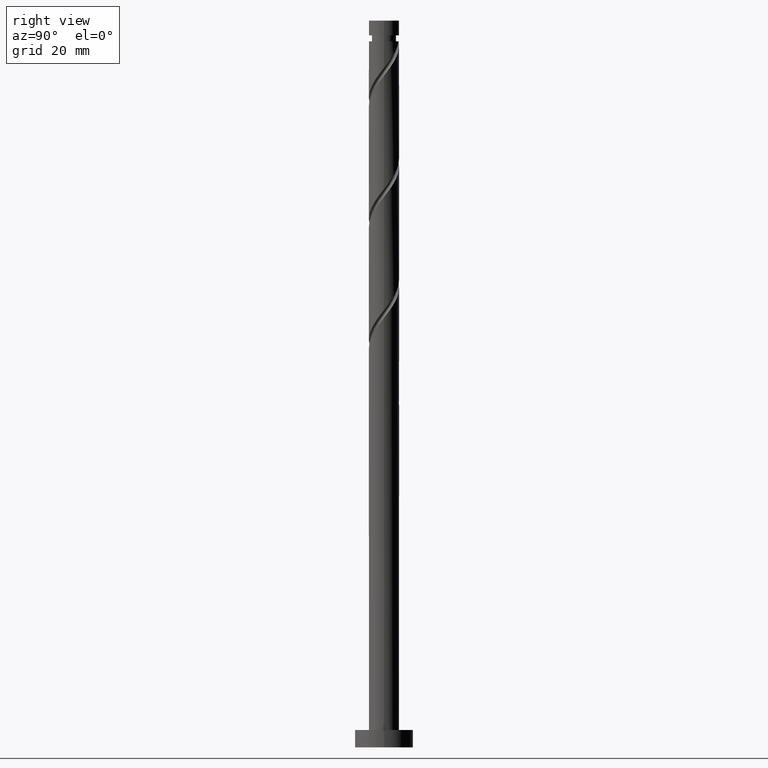
[diagram: clean part render]
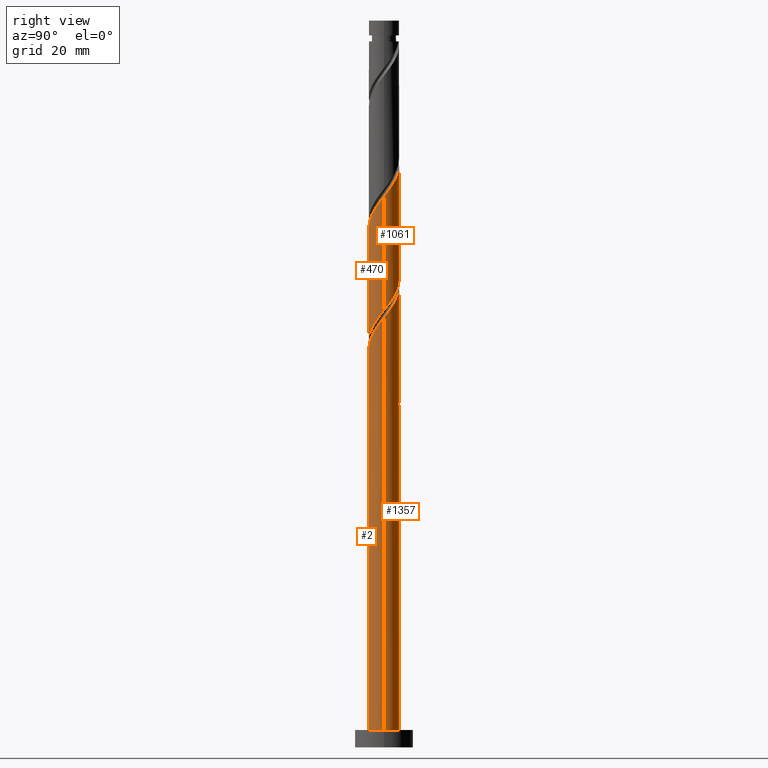
[diagram: same view with one multi-face feature highlighted, each face labeled with its STEP entity id]
A machine part, right view. The highlighted faces form ONE feature: a constant-radius fillet chain: 4 tangent blend faces with common blend radius 2.6 mm. The faces share edges in the B-rep.
Their STEP definitions:
[1] entity #1061 (Cylinder):
#67 = CARTESIAN_POINT ( 'NONE',  ( 2.600000000000002309, 0.2613098319674017067, 95.04932159191936591 ) ) ;
#81 = VECTOR ( 'NONE', #650, 1000.000000000000000 ) ;
#110 = CARTESIAN_POINT ( 'NONE',  ( 2.365491551376095902, 1.079096715020629205, 76.62981945798181016 ) ) ;
#117 = CARTESIAN_POINT ( 'NONE',  ( 0.1138299133485242975, 2.629947074745159430, 80.27565279131513876 ) ) ;
#160 = VERTEX_POINT ( 'NONE', #1541 ) ;
#168 = VERTEX_POINT ( 'NONE', #480 ) ;
#176 = CARTESIAN_POINT ( 'NONE',  ( -2.600000000000004086, -1.259420633789277726E-15, 105.1316836831782098 ) ) ;
#204 = CARTESIAN_POINT ( 'NONE',  ( 2.600000000000003642, 2.203986109131236217E-15, 94.71501701651153837 ) ) ;
#229 = CARTESIAN_POINT ( 'NONE',  ( 2.194579422111507583, 1.453753770477750562, 77.15065279131512455 ) ) ;
#286 = CARTESIAN_POINT ( 'NONE',  ( -0.9209570212423621172, 2.466052925254843320, 101.1089861246484674 ) ) ;
#315 = CARTESIAN_POINT ( 'NONE',  ( 1.757259051958640406, 1.916256930661815350, 97.46315279131513876 ) ) ;
#322 = CARTESIAN_POINT ( 'NONE',  ( 2.263408629347184675, 1.279445730227241729, 96.42148612464845314 ) ) ;
#340 = CARTESIAN_POINT ( 'NONE',  ( -1.453753770477751450, 2.194579422111507139, 82.35898612464846735 ) ) ;
#364 = CARTESIAN_POINT ( 'NONE',  ( -1.079096715020629649, 2.365491551376095458, 81.83815279131513876 ) ) ;
#410 = CARTESIAN_POINT ( 'NONE',  ( -2.536403680640686886, 0.7044396595635092906, 104.2339861246484531 ) ) ;
#433 = CARTESIAN_POINT ( 'NONE',  ( 2.466052925254843320, 0.9209570212423617841, 95.90065279131512455 ) ) ;
#449 = CARTESIAN_POINT ( 'NONE',  ( 1.916256930661813573, 1.757259051958635965, 77.67148612464846735 ) ) ;
#465 = EDGE_LOOP ( 'NONE', ( #701, #1482, #1121, #1178 ) ) ;
#474 = CARTESIAN_POINT ( 'NONE',  ( 2.536403680640682889, 0.7044396595635072922, 76.10898612464849577 ) ) ;
#480 = CARTESIAN_POINT ( 'NONE',  ( 2.599999999999999201, 3.598344667969393893E-15, 75.21128856611873914 ) ) ;
#496 = LINE ( 'NONE', #1470, #1269 ) ;
#520 = CARTESIAN_POINT ( 'NONE',  ( -1.916256930661816238, 1.757259051958639740, 102.6714861246484674 ) ) ;
#540 = CARTESIAN_POINT ( 'NONE',  ( -2.600000000000000089, 3.418427434570925027E-15, 85.62795523278539633 ) ) ;
#545 = CARTESIAN_POINT ( 'NONE',  ( 2.600000000000003642, 2.203986109131236217E-15, 94.71501701651153837 ) ) ;
#580 = DIRECTION ( 'NONE',  ( -0.000000000000000000, -0.000000000000000000, -1.000000000000000000 ) ) ;
#650 = DIRECTION ( 'NONE',  ( -0.000000000000000000, -0.000000000000000000, -1.000000000000000000 ) ) ;
#655 = CARTESIAN_POINT ( 'NONE',  ( 2.060764333439526030, 1.637934439212121340, 96.94231945798181016 ) ) ;
#656 =( BOUNDED_CURVE ( )  B_SPLINE_CURVE ( 2, ( #540, #825, #962, #1572, #1454, #1439, #1549, #340, #364, #1420, #700, #117, #1314, #709, #1199, #1542, #449, #229, #110, #474, #839, #953, #1446 ),
 .UNSPECIFIED., .F., .T. ) 
 B_SPLINE_CURVE_WITH_KNOTS ( ( 3, 2, 2, 2, 2, 2, 2, 2, 2, 2, 2, 3 ),
 ( 0.6795322023138552492, 0.6875000000000000000, 0.6999999999999999556, 0.7125000000000000222, 0.7249999999999999778, 0.7375000000000000444, 0.7500000000000000000, 0.7624999999999999556, 0.7750000000000000222, 0.7874999999999999778, 0.8000000000000000444, 0.8045322023138552492 ),
 .UNSPECIFIED. ) 
 CURVE ( )  GEOMETRIC_REPRESENTATION_ITEM ( )  RATIONAL_B_SPLINE_CURVE ( ( 0.9039174447099346255, 0.9019565955404640345, 0.9090909090909123913, 0.8978984914501285663, 0.9090909090909123913, 0.8978984914501285663, 0.9090909090909123913, 0.8978984914501285663, 0.9090909090909123913, 0.8978984914501285663, 0.9090909090909123913, 0.8978984914501285663, 0.9090909090909123913, 0.8978984914501285663, 0.9090909090909123913, 0.8978984914501285663, 0.9090909090909123913, 0.8978984914501285663, 0.9090909090909123913, 0.8978984914501285663, 0.9090909090909123913, 0.9050328050005768121, 0.9039174447099346255 ) ) 
 REPRESENTATION_ITEM ( '' )  );
#666 = VERTEX_POINT ( 'NONE', #1032 ) ;
#698 = EDGE_CURVE ( 'NONE', #1532, #168, #1383, .T. ) ;
#700 = CARTESIAN_POINT ( 'NONE',  ( -0.2953048731074917055, 2.583175377692920271, 80.79648612464845314 ) ) ;
#701 = ORIENTED_EDGE ( 'NONE', *, *, #1312, .F. ) ;
#709 = CARTESIAN_POINT ( 'NONE',  ( 0.9209570212423614510, 2.466052925254839323, 79.23398612464846735 ) ) ;
#747 = DIRECTION ( 'NONE',  ( -0.000000000000000000, -0.000000000000000000, -1.000000000000000000 ) ) ;
#792 = CARTESIAN_POINT ( 'NONE',  ( -2.600000000000003642, 0.1481317173607208937, 104.9421725939709091 ) ) ;
#825 = CARTESIAN_POINT ( 'NONE',  ( -2.599999999999999645, 0.2613098319673969883, 85.29365065737756879 ) ) ;
#839 = CARTESIAN_POINT ( 'NONE',  ( 2.583175377692920716, 0.2953048731074912059, 75.58815279131513876 ) ) ;
#871 =( BOUNDED_CURVE ( )  B_SPLINE_CURVE ( 2, ( #204, #67, #1387, #433, #322, #655, #315, #1377, #1027, #910, #1009, #885, #1531, #286, #1515, #1044, #520, #1404, #1255, #410, #1155, #792, #176 ),
 .UNSPECIFIED., .F., .T. ) 
 B_SPLINE_CURVE_WITH_KNOTS ( ( 3, 2, 2, 2, 2, 2, 2, 2, 2, 2, 2, 3 ),
 ( 0.4295322023138554157, 0.4375000000000000000, 0.4499999999999999556, 0.4625000000000000222, 0.4749999999999999778, 0.4875000000000000444, 0.5000000000000000000, 0.5124999999999999556, 0.5250000000000000222, 0.5374999999999999778, 0.5500000000000000444, 0.5545322023138553602 ),
 .UNSPECIFIED. ) 
 CURVE ( )  GEOMETRIC_REPRESENTATION_ITEM ( )  RATIONAL_B_SPLINE_CURVE ( ( 0.9039174447099419529, 0.9019565955404715840, 0.9090909090909198298, 0.8978984914501358938, 0.9090909090909198298, 0.8978984914501358938, 0.9090909090909198298, 0.8978984914501358938, 0.9090909090909198298, 0.8978984914501358938, 0.9090909090909198298, 0.8978984914501358938, 0.9090909090909198298, 0.8978984914501358938, 0.9090909090909198298, 0.8978984914501358938, 0.9090909090909198298, 0.8978984914501358938, 0.9090909090909198298, 0.8978984914501358938, 0.9090909090909198298, 0.9050328050005841396, 0.9039174447099420640 ) ) 
 REPRESENTATION_ITEM ( '' )  );
#885 = CARTESIAN_POINT ( 'NONE',  ( -0.1138299133485232845, 2.629947074745163871, 100.0673194579818244 ) ) ;
#910 = CARTESIAN_POINT ( 'NONE',  ( 0.7044396595635099567, 2.536403680640686886, 99.02565279131511033 ) ) ;
#939 = CARTESIAN_POINT ( 'NONE',  ( 0.000000000000000000, 0.000000000000000000, 125.0000000000000000 ) ) ;
#953 = CARTESIAN_POINT ( 'NONE',  ( 2.600000000000000089, 0.1481317173607231974, 75.40079965532601136 ) ) ;
#962 = CARTESIAN_POINT ( 'NONE',  ( -2.547999999999999154, 0.5173934672954427771, 84.96315279131515297 ) ) ;
#1009 = CARTESIAN_POINT ( 'NONE',  ( 0.2953048731074934263, 2.583175377692925156, 99.54648612464845314 ) ) ;
#1027 = CARTESIAN_POINT ( 'NONE',  ( 1.079096715020632535, 2.365491551376099011, 98.50481945798181016 ) ) ;
#1032 = CARTESIAN_POINT ( 'NONE',  ( -2.600000000000004086, -1.259420633789277726E-15, 105.1316836831782098 ) ) ;
#1044 = CARTESIAN_POINT ( 'NONE',  ( -1.637934439212121562, 2.060764333439525142, 102.1506527913151388 ) ) ;
#1061 = ADVANCED_FACE ( 'NONE', ( #1064 ), #1553, .T. ) ;
#1064 = FACE_OUTER_BOUND ( 'NONE', #465, .T. ) ;
#1071 = AXIS2_PLACEMENT_3D ( 'NONE', #939, #580, #1072 ) ;
#1072 = DIRECTION ( 'NONE',  ( -1.000000000000000000, 0.000000000000000000, 0.000000000000000000 ) ) ;
#1121 = ORIENTED_EDGE ( 'NONE', *, *, #1391, .F. ) ;
#1155 = CARTESIAN_POINT ( 'NONE',  ( -2.583175377692925156, 0.2953048731074928157, 104.7548194579817959 ) ) ;
#1178 = ORIENTED_EDGE ( 'NONE', *, *, #1192, .F. ) ;
#1192 = EDGE_CURVE ( 'NONE', #666, #160, #496, .T. ) ;
#1199 = CARTESIAN_POINT ( 'NONE',  ( 1.279445730227240841, 2.263408629347179790, 78.71315279131515297 ) ) ;
#1255 = CARTESIAN_POINT ( 'NONE',  ( -2.365491551376099011, 1.079096715020631869, 103.7131527913151103 ) ) ;
#1269 = VECTOR ( 'NONE', #747, 1000.000000000000000 ) ;
#1312 = EDGE_CURVE ( 'NONE', #1532, #666, #871, .T. ) ;
#1314 = CARTESIAN_POINT ( 'NONE',  ( 0.5173934672954433323, 2.547999999999999154, 79.75481945798181016 ) ) ;
#1377 = CARTESIAN_POINT ( 'NONE',  ( 1.453753770477754559, 2.194579422111509359, 97.98398612464848156 ) ) ;
#1383 = LINE ( 'NONE', #1408, #81 ) ;
#1387 = CARTESIAN_POINT ( 'NONE',  ( 2.548000000000004039, 0.5173934672954426661, 95.37981945798179595 ) ) ;
#1391 = EDGE_CURVE ( 'NONE', #160, #168, #656, .T. ) ;
#1404 = CARTESIAN_POINT ( 'NONE',  ( -2.194579422111509803, 1.453753770477754115, 103.1923194579817959 ) ) ;
#1408 = CARTESIAN_POINT ( 'NONE',  ( 2.600000000000000089, 3.184081677783117698E-16, 125.0000000000000000 ) ) ;
#1420 = CARTESIAN_POINT ( 'NONE',  ( -0.7044396595635075142, 2.536403680640682445, 81.31731945798182437 ) ) ;
#1439 = CARTESIAN_POINT ( 'NONE',  ( -2.060764333439521589, 1.637934439212119120, 83.40065279131512455 ) ) ;
#1446 = CARTESIAN_POINT ( 'NONE',  ( 2.599999999999999201, 3.598344667969393893E-15, 75.21128856611873914 ) ) ;
#1454 = CARTESIAN_POINT ( 'NONE',  ( -2.263408629347179790, 1.279445730227240396, 83.92148612464850999 ) ) ;
#1470 = CARTESIAN_POINT ( 'NONE',  ( -2.600000000000000089, 0.000000000000000000, 125.0000000000000000 ) ) ;
#1482 = ORIENTED_EDGE ( 'NONE', *, *, #698, .T. ) ;
#1515 = CARTESIAN_POINT ( 'NONE',  ( -1.279445730227242173, 2.263408629347184231, 101.6298194579818102 ) ) ;
#1531 = CARTESIAN_POINT ( 'NONE',  ( -0.5173934672954423331, 2.548000000000004039, 100.5881527913151245 ) ) ;
#1532 = VERTEX_POINT ( 'NONE', #545 ) ;
#1541 = CARTESIAN_POINT ( 'NONE',  ( -2.599999999999999645, 3.418427434570925027E-15, 85.62795523278539633 ) ) ;
#1542 = CARTESIAN_POINT ( 'NONE',  ( 1.637934439212119342, 2.060764333439521589, 78.19231945798179595 ) ) ;
#1549 = CARTESIAN_POINT ( 'NONE',  ( -1.757259051958636853, 1.916256930661813129, 82.87981945798182437 ) ) ;
#1553 = CYLINDRICAL_SURFACE ( 'NONE', #1071, 2.600000000000000089 ) ;
#1572 = CARTESIAN_POINT ( 'NONE',  ( -2.466052925254840211, 0.9209570212423611180, 84.44231945798181016 ) ) ;
[2] entity #470 (Cylinder):
#7 =( BOUNDED_CURVE ( )  B_SPLINE_CURVE ( 2, ( #193, #917, #445, #115, #209, #336, #680, #1066, #1435, #689, #594, #1303, #1294, #567, #950, #1570, #1444, #99, #471, #1424, #1085, #1049, #1538 ),
 .UNSPECIFIED., .F., .T. ) 
 B_SPLINE_CURVE_WITH_KNOTS ( ( 3, 2, 2, 2, 2, 2, 2, 2, 2, 2, 2, 3 ),
 ( 0.8045322023138552492, 0.8125000000000000000, 0.8249999999999999556, 0.8375000000000000222, 0.8499999999999999778, 0.8625000000000000444, 0.8750000000000000000, 0.8874999999999999556, 0.9000000000000000222, 0.9124999999999999778, 0.9250000000000000444, 0.9295322023138552492 ),
 .UNSPECIFIED. ) 
 CURVE ( )  GEOMETRIC_REPRESENTATION_ITEM ( )  RATIONAL_B_SPLINE_CURVE ( ( 0.9039174447099346255, 0.9019565955404640345, 0.9090909090909123913, 0.8978984914501285663, 0.9090909090909123913, 0.8978984914501285663, 0.9090909090909123913, 0.8978984914501285663, 0.9090909090909123913, 0.8978984914501285663, 0.9090909090909123913, 0.8978984914501285663, 0.9090909090909123913, 0.8978984914501285663, 0.9090909090909123913, 0.8978984914501285663, 0.9090909090909123913, 0.8978984914501285663, 0.9090909090909123913, 0.8978984914501285663, 0.9090909090909123913, 0.9050328050005768121, 0.9039174447099346255 ) ) 
 REPRESENTATION_ITEM ( '' )  );
#26 = CARTESIAN_POINT ( 'NONE',  ( -1.079096715020632091, -2.365491551376099011, 88.08815279131511033 ) ) ;
#38 = CARTESIAN_POINT ( 'NONE',  ( -2.600000000000000089, 0.000000000000000000, 125.0000000000000000 ) ) ;
#81 = VECTOR ( 'NONE', #650, 1000.000000000000000 ) ;
#99 = CARTESIAN_POINT ( 'NONE',  ( -2.194579422111507139, -1.453753770477751450, 66.73398612464846735 ) ) ;
#115 = CARTESIAN_POINT ( 'NONE',  ( 2.466052925254839323, -0.9209570212423613400, 74.02565279131513876 ) ) ;
#133 = CARTESIAN_POINT ( 'NONE',  ( -1.757259051958639740, -1.916256930661815572, 87.04648612464848156 ) ) ;
#140 = CARTESIAN_POINT ( 'NONE',  ( 0.5173934672954427771, -2.548000000000004039, 90.17148612464845314 ) ) ;
#147 = CARTESIAN_POINT ( 'NONE',  ( -2.600000000000003197, -0.2613098319674003189, 84.63265492525272293 ) ) ;
#161 = CARTESIAN_POINT ( 'NONE',  ( -2.060764333439525142, -1.637934439212121562, 86.52565279131515297 ) ) ;
#168 = VERTEX_POINT ( 'NONE', #480 ) ;
#193 = CARTESIAN_POINT ( 'NONE',  ( 2.599999999999999201, 3.598344667969393893E-15, 75.21128856611873914 ) ) ;
#209 = CARTESIAN_POINT ( 'NONE',  ( 2.263408629347179790, -1.279445730227240841, 73.50481945798181016 ) ) ;
#216 = VECTOR ( 'NONE', #1022, 1000.000000000000000 ) ;
#266 = CARTESIAN_POINT ( 'NONE',  ( 2.536403680640686886, -0.7044396595635095126, 93.81731945798181016 ) ) ;
#284 = ORIENTED_EDGE ( 'NONE', *, *, #1240, .F. ) ;
#336 = CARTESIAN_POINT ( 'NONE',  ( 2.060764333439521589, -1.637934439212119342, 72.98398612464846735 ) ) ;
#377 = VERTEX_POINT ( 'NONE', #976 ) ;
#379 = CARTESIAN_POINT ( 'NONE',  ( -2.466052925254843320, -0.9209570212423621172, 85.48398612464846735 ) ) ;
#390 = DIRECTION ( 'NONE',  ( -1.000000000000000000, 0.000000000000000000, 0.000000000000000000 ) ) ;
#394 = CARTESIAN_POINT ( 'NONE',  ( 2.583175377692925156, -0.2953048731074931488, 94.33815279131515297 ) ) ;
#401 = CARTESIAN_POINT ( 'NONE',  ( -2.263408629347184675, -1.279445730227242173, 86.00481945798179595 ) ) ;
#445 = CARTESIAN_POINT ( 'NONE',  ( 2.547999999999999154, -0.5173934672954431102, 74.54648612464848156 ) ) ;
#470 = ADVANCED_FACE ( 'NONE', ( #628 ), #1229, .T. ) ;
#471 = CARTESIAN_POINT ( 'NONE',  ( -2.365491551376095458, -1.079096715020629205, 66.21315279131513876 ) ) ;
#480 = CARTESIAN_POINT ( 'NONE',  ( 2.599999999999999201, 3.598344667969393893E-15, 75.21128856611873914 ) ) ;
#481 = ORIENTED_EDGE ( 'NONE', *, *, #770, .F. ) ;
#508 = CARTESIAN_POINT ( 'NONE',  ( 1.279445730227241729, -2.263408629347184675, 91.21315279131512455 ) ) ;
#527 = EDGE_CURVE ( 'NONE', #1385, #377, #778, .T. ) ;
#545 = CARTESIAN_POINT ( 'NONE',  ( 2.600000000000003642, 2.203986109131236217E-15, 94.71501701651153837 ) ) ;
#548 = CARTESIAN_POINT ( 'NONE',  ( -2.600000000000004086, -2.623792987060995591E-15, 84.29835034984489539 ) ) ;
#567 = CARTESIAN_POINT ( 'NONE',  ( -0.9209570212423611180, -2.466052925254839323, 68.81731945798181016 ) ) ;
#594 = CARTESIAN_POINT ( 'NONE',  ( 0.2953048731074912059, -2.583175377692920716, 70.37981945798181016 ) ) ;
#611 = CARTESIAN_POINT ( 'NONE',  ( 0.1138299133485235898, -2.629947074745163871, 89.65065279131512455 ) ) ;
#618 = CARTESIAN_POINT ( 'NONE',  ( 2.600000000000003642, 2.203986109131236217E-15, 94.71501701651153837 ) ) ;
#621 = CARTESIAN_POINT ( 'NONE',  ( 0.000000000000000000, 0.000000000000000000, 125.0000000000000000 ) ) ;
#628 = FACE_OUTER_BOUND ( 'NONE', #1080, .T. ) ;
#650 = DIRECTION ( 'NONE',  ( -0.000000000000000000, -0.000000000000000000, -1.000000000000000000 ) ) ;
#680 = CARTESIAN_POINT ( 'NONE',  ( 1.757259051958636409, -1.916256930661813573, 72.46315279131513876 ) ) ;
#689 = CARTESIAN_POINT ( 'NONE',  ( 0.7044396595635074032, -2.536403680640682445, 70.90065279131516718 ) ) ;
#698 = EDGE_CURVE ( 'NONE', #1532, #168, #1383, .T. ) ;
#760 = CARTESIAN_POINT ( 'NONE',  ( 1.916256930661815572, -1.757259051958639740, 92.25481945798179595 ) ) ;
#770 = EDGE_CURVE ( 'NONE', #168, #377, #7, .T. ) ;
#778 = LINE ( 'NONE', #38, #216 ) ;
#872 = CARTESIAN_POINT ( 'NONE',  ( 2.600000000000004974, -0.1481317173607195059, 94.52550592730426615 ) ) ;
#917 = CARTESIAN_POINT ( 'NONE',  ( 2.599999999999999645, -0.2613098319673973768, 74.87698399071091160 ) ) ;
#935 =( BOUNDED_CURVE ( )  B_SPLINE_CURVE ( 2, ( #1344, #147, #1484, #379, #401, #161, #133, #1226, #26, #1115, #1352, #611, #140, #1102, #508, #1464, #760, #979, #1001, #266, #394, #872, #618 ),
 .UNSPECIFIED., .F., .T. ) 
 B_SPLINE_CURVE_WITH_KNOTS ( ( 3, 2, 2, 2, 2, 2, 2, 2, 2, 2, 2, 3 ),
 ( 0.3045322023138553602, 0.3125000000000000000, 0.3249999999999999556, 0.3375000000000000222, 0.3499999999999999778, 0.3625000000000000444, 0.3750000000000000000, 0.3874999999999999556, 0.4000000000000000222, 0.4124999999999999778, 0.4250000000000000444, 0.4295322023138554157 ),
 .UNSPECIFIED. ) 
 CURVE ( )  GEOMETRIC_REPRESENTATION_ITEM ( )  RATIONAL_B_SPLINE_CURVE ( ( 0.9039174447099420640, 0.9019565955404715840, 0.9090909090909198298, 0.8978984914501358938, 0.9090909090909198298, 0.8978984914501358938, 0.9090909090909198298, 0.8978984914501358938, 0.9090909090909198298, 0.8978984914501358938, 0.9090909090909198298, 0.8978984914501358938, 0.9090909090909198298, 0.8978984914501358938, 0.9090909090909198298, 0.8978984914501358938, 0.9090909090909198298, 0.8978984914501358938, 0.9090909090909198298, 0.8978984914501358938, 0.9090909090909198298, 0.9050328050005840286, 0.9039174447099419529 ) ) 
 REPRESENTATION_ITEM ( '' )  );
#937 = ORIENTED_EDGE ( 'NONE', *, *, #527, .T. ) ;
#950 = CARTESIAN_POINT ( 'NONE',  ( -1.279445730227240396, -2.263408629347179790, 68.29648612464848156 ) ) ;
#976 = CARTESIAN_POINT ( 'NONE',  ( -2.599999999999999645, 3.418427434570925027E-15, 64.79462189945206774 ) ) ;
#979 = CARTESIAN_POINT ( 'NONE',  ( 2.194579422111509803, -1.453753770477754337, 92.77565279131512455 ) ) ;
#1001 = CARTESIAN_POINT ( 'NONE',  ( 2.365491551376099011, -1.079096715020632091, 93.29648612464846735 ) ) ;
#1022 = DIRECTION ( 'NONE',  ( -0.000000000000000000, -0.000000000000000000, -1.000000000000000000 ) ) ;
#1049 = CARTESIAN_POINT ( 'NONE',  ( -2.600000000000000089, -0.1481317173607233639, 64.98413298865933996 ) ) ;
#1066 = CARTESIAN_POINT ( 'NONE',  ( 1.453753770477751450, -2.194579422111507583, 71.94231945798176753 ) ) ;
#1080 = EDGE_LOOP ( 'NONE', ( #1237, #284, #937, #481 ) ) ;
#1085 = CARTESIAN_POINT ( 'NONE',  ( -2.583175377692920716, -0.2953048731074913169, 65.17148612464845314 ) ) ;
#1102 = CARTESIAN_POINT ( 'NONE',  ( 0.9209570212423618951, -2.466052925254843320, 90.69231945798182437 ) ) ;
#1111 = DIRECTION ( 'NONE',  ( -0.000000000000000000, -0.000000000000000000, -1.000000000000000000 ) ) ;
#1115 = CARTESIAN_POINT ( 'NONE',  ( -0.7044396595635092906, -2.536403680640686886, 88.60898612464843893 ) ) ;
#1226 = CARTESIAN_POINT ( 'NONE',  ( -1.453753770477754337, -2.194579422111509803, 87.56731945798179595 ) ) ;
#1229 = CYLINDRICAL_SURFACE ( 'NONE', #1379, 2.600000000000000089 ) ;
#1237 = ORIENTED_EDGE ( 'NONE', *, *, #698, .F. ) ;
#1240 = EDGE_CURVE ( 'NONE', #1385, #1532, #935, .T. ) ;
#1294 = CARTESIAN_POINT ( 'NONE',  ( -0.5173934672954429992, -2.547999999999999154, 69.33815279131515297 ) ) ;
#1303 = CARTESIAN_POINT ( 'NONE',  ( -0.1138299133485246722, -2.629947074745159430, 69.85898612464846735 ) ) ;
#1344 = CARTESIAN_POINT ( 'NONE',  ( -2.600000000000004086, -2.623792987060995591E-15, 84.29835034984489539 ) ) ;
#1352 = CARTESIAN_POINT ( 'NONE',  ( -0.2953048731074928712, -2.583175377692925156, 89.12981945798179595 ) ) ;
#1379 = AXIS2_PLACEMENT_3D ( 'NONE', #621, #1111, #390 ) ;
#1383 = LINE ( 'NONE', #1408, #81 ) ;
#1385 = VERTEX_POINT ( 'NONE', #548 ) ;
#1408 = CARTESIAN_POINT ( 'NONE',  ( 2.600000000000000089, 3.184081677783117698E-16, 125.0000000000000000 ) ) ;
#1424 = CARTESIAN_POINT ( 'NONE',  ( -2.536403680640682445, -0.7044396595635075142, 65.69231945798181016 ) ) ;
#1435 = CARTESIAN_POINT ( 'NONE',  ( 1.079096715020629205, -2.365491551376095458, 71.42148612464845314 ) ) ;
#1444 = CARTESIAN_POINT ( 'NONE',  ( -1.916256930661813573, -1.757259051958636409, 67.25481945798181016 ) ) ;
#1464 = CARTESIAN_POINT ( 'NONE',  ( 1.637934439212121118, -2.060764333439525142, 91.73398612464848156 ) ) ;
#1484 = CARTESIAN_POINT ( 'NONE',  ( -2.548000000000004039, -0.5173934672954429992, 84.96315279131515297 ) ) ;
#1532 = VERTEX_POINT ( 'NONE', #545 ) ;
#1538 = CARTESIAN_POINT ( 'NONE',  ( -2.600000000000000089, 3.418427434570925027E-15, 64.79462189945206774 ) ) ;
#1570 = CARTESIAN_POINT ( 'NONE',  ( -1.637934439212119120, -2.060764333439521589, 67.77565279131512455 ) ) ;
[3] entity #1357 (Cylinder):
#33 = ORIENTED_EDGE ( 'NONE', *, *, #1339, .F. ) ;
#38 = CARTESIAN_POINT ( 'NONE',  ( -2.600000000000000089, 0.000000000000000000, 125.0000000000000000 ) ) ;
#54 = DIRECTION ( 'NONE',  ( 0.000000000000000000, 0.000000000000000000, 1.000000000000000000 ) ) ;
#58 = CYLINDRICAL_SURFACE ( 'NONE', #1013, 2.600000000000000089 ) ;
#76 = CARTESIAN_POINT ( 'NONE',  ( 0.000000000000000000, 0.000000000000000000, 125.0000000000000000 ) ) ;
#91 = CARTESIAN_POINT ( 'NONE',  ( -2.600000000000003642, 0.1481317173607208937, 84.10883926063760896 ) ) ;
#106 = CARTESIAN_POINT ( 'NONE',  ( 2.600000000000003642, 2.203986109131236217E-15, 73.88168368317820978 ) ) ;
#124 = ORIENTED_EDGE ( 'NONE', *, *, #1347, .T. ) ;
#128 =( BOUNDED_CURVE ( )  B_SPLINE_CURVE ( 2, ( #106, #234, #1058, #1319, #1417, #219, #562, #714, #1451, #1196, #959, #1555, #1188, #326, #803, #1175, #830, #796, #1286, #574, #201, #91, #1546 ),
 .UNSPECIFIED., .F., .T. ) 
 B_SPLINE_CURVE_WITH_KNOTS ( ( 3, 2, 2, 2, 2, 2, 2, 2, 2, 2, 2, 3 ),
 ( 0.1795322023138554157, 0.1875000000000000000, 0.1999999999999999556, 0.2125000000000000222, 0.2249999999999999778, 0.2375000000000000444, 0.2500000000000000000, 0.2624999999999999556, 0.2750000000000000222, 0.2874999999999999778, 0.3000000000000000444, 0.3045322023138553602 ),
 .UNSPECIFIED. ) 
 CURVE ( )  GEOMETRIC_REPRESENTATION_ITEM ( )  RATIONAL_B_SPLINE_CURVE ( ( 0.9039174447099419529, 0.9019565955404715840, 0.9090909090909198298, 0.8978984914501358938, 0.9090909090909198298, 0.8978984914501358938, 0.9090909090909198298, 0.8978984914501358938, 0.9090909090909198298, 0.8978984914501358938, 0.9090909090909198298, 0.8978984914501358938, 0.9090909090909198298, 0.8978984914501358938, 0.9090909090909198298, 0.8978984914501358938, 0.9090909090909198298, 0.8978984914501358938, 0.9090909090909198298, 0.8978984914501358938, 0.9090909090909198298, 0.9050328050005841396, 0.9039174447099420640 ) ) 
 REPRESENTATION_ITEM ( '' )  );
#130 = CARTESIAN_POINT ( 'NONE',  ( -1.916256930661816238, 1.757259051958639740, 61.00481945798179595 ) ) ;
#150 = CARTESIAN_POINT ( 'NONE',  ( -1.637934439212121562, 2.060764333439525142, 60.48398612464847446 ) ) ;
#153 = VECTOR ( 'NONE', #353, 1000.000000000000000 ) ;
#186 = FACE_OUTER_BOUND ( 'NONE', #1170, .T. ) ;
#201 = CARTESIAN_POINT ( 'NONE',  ( -2.583175377692925156, 0.2953048731074928157, 83.92148612464849577 ) ) ;
#216 = VECTOR ( 'NONE', #1022, 1000.000000000000000 ) ;
#219 = CARTESIAN_POINT ( 'NONE',  ( 2.060764333439526030, 1.637934439212121340, 76.10898612464848156 ) ) ;
#226 = CARTESIAN_POINT ( 'NONE',  ( 2.600000000000003642, 2.203986109131236217E-15, 73.88168368317820978 ) ) ;
#228 = CARTESIAN_POINT ( 'NONE',  ( 2.600000000000000089, 3.184081677783117698E-16, 3.000000000000000000 ) ) ;
#234 = CARTESIAN_POINT ( 'NONE',  ( 2.600000000000002309, 0.2613098319674017067, 74.21598825858605153 ) ) ;
#265 = VERTEX_POINT ( 'NONE', #228 ) ;
#295 = CARTESIAN_POINT ( 'NONE',  ( -1.757259051958636853, 1.916256930661813129, 62.04648612464847446 ) ) ;
#326 = CARTESIAN_POINT ( 'NONE',  ( -0.9209570212423621172, 2.466052925254843320, 80.27565279131512455 ) ) ;
#353 = DIRECTION ( 'NONE',  ( -0.000000000000000000, -0.000000000000000000, -1.000000000000000000 ) ) ;
#354 = EDGE_CURVE ( 'NONE', #577, #386, #1254, .T. ) ;
#377 = VERTEX_POINT ( 'NONE', #976 ) ;
#386 = VERTEX_POINT ( 'NONE', #729 ) ;
#391 = CIRCLE ( 'NONE', #592, 2.600000000000000089 ) ;
#397 = CARTESIAN_POINT ( 'NONE',  ( -2.365491551376099011, 1.079096715020631869, 62.04648612464847446 ) ) ;
#416 = DIRECTION ( 'NONE',  ( -0.000000000000000000, -0.000000000000000000, -1.000000000000000000 ) ) ;
#441 = CARTESIAN_POINT ( 'NONE',  ( -2.060764333439521589, 1.637934439212119120, 62.56731945798178884 ) ) ;
#479 = CARTESIAN_POINT ( 'NONE',  ( 2.600000000000000089, 3.184081677783117698E-16, 125.0000000000000000 ) ) ;
#499 = CARTESIAN_POINT ( 'NONE',  ( -2.600000000000003642, 0.1481317173607254456, 63.27550592730425905 ) ) ;
#527 = EDGE_CURVE ( 'NONE', #1385, #377, #778, .T. ) ;
#548 = CARTESIAN_POINT ( 'NONE',  ( -2.600000000000004086, -2.623792987060995591E-15, 84.29835034984489539 ) ) ;
#555 = CARTESIAN_POINT ( 'NONE',  ( -1.453753770477751450, 2.194579422111507139, 61.52565279131513165 ) ) ;
#562 = CARTESIAN_POINT ( 'NONE',  ( 1.757259051958640406, 1.916256930661815350, 76.62981945798178174 ) ) ;
#574 = CARTESIAN_POINT ( 'NONE',  ( -2.536403680640686886, 0.7044396595635092906, 83.40065279131512455 ) ) ;
#577 = VERTEX_POINT ( 'NONE', #1004 ) ;
#582 = AXIS2_PLACEMENT_3D ( 'NONE', #1164, #1504, #799 ) ;
#592 = AXIS2_PLACEMENT_3D ( 'NONE', #1160, #54, #1012 ) ;
#601 = CARTESIAN_POINT ( 'NONE',  ( -1.279445730227242173, 2.263408629347184231, 59.96315279131513876 ) ) ;
#609 = CARTESIAN_POINT ( 'NONE',  ( -2.600000000000003642, -2.623792987060995591E-15, 63.46501701651152416 ) ) ;
#675 = CARTESIAN_POINT ( 'NONE',  ( -2.263408629347179790, 1.279445730227240396, 63.08815279131514586 ) ) ;
#677 = EDGE_CURVE ( 'NONE', #265, #884, #391, .T. ) ;
#684 = CARTESIAN_POINT ( 'NONE',  ( 0.5173934672954432212, 2.547999999999999154, 58.92148612464846735 ) ) ;
#692 = ORIENTED_EDGE ( 'NONE', *, *, #812, .F. ) ;
#705 = DIRECTION ( 'NONE',  ( -0.000000000000000000, -0.000000000000000000, -1.000000000000000000 ) ) ;
#714 = CARTESIAN_POINT ( 'NONE',  ( 1.453753770477754559, 2.194579422111509359, 77.15065279131512455 ) ) ;
#729 = CARTESIAN_POINT ( 'NONE',  ( -2.600000000000004086, -2.623792987060995591E-15, 63.46501701651152416 ) ) ;
#738 = ORIENTED_EDGE ( 'NONE', *, *, #677, .T. ) ;
#766 = CARTESIAN_POINT ( 'NONE',  ( -2.547999999999999154, 0.5173934672954427771, 64.12981945798181016 ) ) ;
#778 = LINE ( 'NONE', #38, #216 ) ;
#783 = DIRECTION ( 'NONE',  ( -1.000000000000000000, 0.000000000000000000, 0.000000000000000000 ) ) ;
#791 = EDGE_CURVE ( 'NONE', #1468, #265, #925, .T. ) ;
#796 = CARTESIAN_POINT ( 'NONE',  ( -2.194579422111509803, 1.453753770477754115, 82.35898612464848156 ) ) ;
#799 = DIRECTION ( 'NONE',  ( 0.000000000000000000, 1.000000000000000000, -2.135044278125300869E-14 ) ) ;
#803 = CARTESIAN_POINT ( 'NONE',  ( -1.279445730227242173, 2.263408629347184231, 80.79648612464846735 ) ) ;
#812 = EDGE_CURVE ( 'NONE', #1468, #1385, #128, .T. ) ;
#830 = CARTESIAN_POINT ( 'NONE',  ( -1.916256930661816238, 1.757259051958639740, 81.83815279131513876 ) ) ;
#854 = ORIENTED_EDGE ( 'NONE', *, *, #791, .T. ) ;
#858 = EDGE_CURVE ( 'NONE', #386, #884, #1310, .T. ) ;
#861 = CARTESIAN_POINT ( 'NONE',  ( -2.194579422111509803, 1.453753770477754115, 61.52565279131512455 ) ) ;
#875 = CARTESIAN_POINT ( 'NONE',  ( -2.583175377692925156, 0.2953048731074928157, 63.08815279131513165 ) ) ;
#884 = VERTEX_POINT ( 'NONE', #941 ) ;
#901 = CARTESIAN_POINT ( 'NONE',  ( -2.466052925254840211, 0.9209570212423611180, 63.60898612464846735 ) ) ;
#921 = CARTESIAN_POINT ( 'NONE',  ( 0.1138299133485242975, 2.629947074745159430, 59.44231945798179595 ) ) ;
#925 = LINE ( 'NONE', #479, #153 ) ;
#941 = CARTESIAN_POINT ( 'NONE',  ( -2.600000000000000089, 0.000000000000000000, 3.000000000000000000 ) ) ;
#959 = CARTESIAN_POINT ( 'NONE',  ( 0.2953048731074934263, 2.583175377692925156, 78.71315279131512455 ) ) ;
#965 = VECTOR ( 'NONE', #705, 1000.000000000000000 ) ;
#976 = CARTESIAN_POINT ( 'NONE',  ( -2.599999999999999645, 3.418427434570925027E-15, 64.79462189945206774 ) ) ;
#998 = CARTESIAN_POINT ( 'NONE',  ( -2.536403680640686886, 0.7044396595635092906, 62.56731945798180305 ) ) ;
#1004 = CARTESIAN_POINT ( 'NONE',  ( -0.5173934672954424441, 2.548000000000004039, 58.92148612464846735 ) ) ;
#1012 = DIRECTION ( 'NONE',  ( 1.000000000000000000, 0.000000000000000000, 0.000000000000000000 ) ) ;
#1013 = AXIS2_PLACEMENT_3D ( 'NONE', #76, #416, #783 ) ;
#1017 = CARTESIAN_POINT ( 'NONE',  ( -0.2953048731074917055, 2.583175377692920271, 59.96315279131513876 ) ) ;
#1022 = DIRECTION ( 'NONE',  ( -0.000000000000000000, -0.000000000000000000, -1.000000000000000000 ) ) ;
#1058 = CARTESIAN_POINT ( 'NONE',  ( 2.548000000000004039, 0.5173934672954426661, 74.54648612464846735 ) ) ;
#1069 = ORIENTED_EDGE ( 'NONE', *, *, #858, .F. ) ;
#1105 = CARTESIAN_POINT ( 'NONE',  ( -0.9209570212423621172, 2.466052925254843320, 59.44231945798179595 ) ) ;
#1137 = CARTESIAN_POINT ( 'NONE',  ( -1.079096715020629649, 2.365491551376095458, 61.00481945798179595 ) ) ;
#1142 = CIRCLE ( 'NONE', #582, 2.600000000000000089 ) ;
#1147 = CARTESIAN_POINT ( 'NONE',  ( -2.600000000000000089, 3.418427434570925027E-15, 64.79462189945206774 ) ) ;
#1160 = CARTESIAN_POINT ( 'NONE',  ( 0.000000000000000000, 0.000000000000000000, 3.000000000000000000 ) ) ;
#1164 = CARTESIAN_POINT ( 'NONE',  ( 0.000000000000000000, 0.000000000000000000, 58.92148612464852420 ) ) ;
#1170 = EDGE_LOOP ( 'NONE', ( #692, #854, #738, #1069, #1396, #124, #33, #1231 ) ) ;
#1175 = CARTESIAN_POINT ( 'NONE',  ( -1.637934439212121562, 2.060764333439525142, 81.31731945798178174 ) ) ;
#1181 = CARTESIAN_POINT ( 'NONE',  ( -2.600000000000000089, 0.000000000000000000, 125.0000000000000000 ) ) ;
#1188 = CARTESIAN_POINT ( 'NONE',  ( -0.5173934672954423331, 2.548000000000004039, 79.75481945798179595 ) ) ;
#1196 = CARTESIAN_POINT ( 'NONE',  ( 0.7044396595635099567, 2.536403680640686886, 78.19231945798178174 ) ) ;
#1231 = ORIENTED_EDGE ( 'NONE', *, *, #527, .F. ) ;
#1254 =( BOUNDED_CURVE ( )  B_SPLINE_CURVE ( 2, ( #1487, #1105, #601, #150, #130, #861, #397, #998, #875, #499, #609 ),
 .UNSPECIFIED., .F., .T. ) 
 B_SPLINE_CURVE_WITH_KNOTS ( ( 3, 2, 2, 2, 2, 3 ),
 ( 0.000000000000000000, 0.01249999999999995559, 0.02500000000000002220, 0.03749999999999997780, 0.05000000000000004441, 0.05453220231385522143 ),
 .UNSPECIFIED. ) 
 CURVE ( )  GEOMETRIC_REPRESENTATION_ITEM ( )  RATIONAL_B_SPLINE_CURVE ( ( 0.9090909090909198298, 0.8978984914501358938, 0.9090909090909198298, 0.8978984914501358938, 0.9090909090909198298, 0.8978984914501358938, 0.9090909090909198298, 0.8978984914501358938, 0.9090909090909198298, 0.9050328050005841396, 0.9039174447099419529 ) ) 
 REPRESENTATION_ITEM ( '' )  );
#1282 = CARTESIAN_POINT ( 'NONE',  ( -2.599999999999999645, 0.2613098319673969883, 64.46031732404424019 ) ) ;
#1286 = CARTESIAN_POINT ( 'NONE',  ( -2.365491551376099011, 1.079096715020631869, 82.87981945798179595 ) ) ;
#1310 = LINE ( 'NONE', #1181, #965 ) ;
#1319 = CARTESIAN_POINT ( 'NONE',  ( 2.466052925254843320, 0.9209570212423617841, 75.06731945798178174 ) ) ;
#1339 = EDGE_CURVE ( 'NONE', #377, #1475, #1372, .T. ) ;
#1347 = EDGE_CURVE ( 'NONE', #577, #1475, #1142, .T. ) ;
#1357 = ADVANCED_FACE ( 'NONE', ( #186 ), #58, .T. ) ;
#1372 =( BOUNDED_CURVE ( )  B_SPLINE_CURVE ( 2, ( #1147, #1282, #766, #901, #675, #441, #295, #555, #1137, #1395, #1017, #921, #684 ),
 .UNSPECIFIED., .F., .T. ) 
 B_SPLINE_CURVE_WITH_KNOTS ( ( 3, 2, 2, 2, 2, 2, 3 ),
 ( 0.9295322023138552492, 0.9375000000000000000, 0.9499999999999999556, 0.9625000000000000222, 0.9749999999999999778, 0.9875000000000000444, 1.000000000000000000 ),
 .UNSPECIFIED. ) 
 CURVE ( )  GEOMETRIC_REPRESENTATION_ITEM ( )  RATIONAL_B_SPLINE_CURVE ( ( 0.9039174447099346255, 0.9019565955404640345, 0.9090909090909123913, 0.8978984914501285663, 0.9090909090909123913, 0.8978984914501285663, 0.9090909090909123913, 0.8978984914501285663, 0.9090909090909123913, 0.8978984914501285663, 0.9090909090909123913, 0.8978984914501285663, 0.9090909090909123913 ) ) 
 REPRESENTATION_ITEM ( '' )  );
#1385 = VERTEX_POINT ( 'NONE', #548 ) ;
#1395 = CARTESIAN_POINT ( 'NONE',  ( -0.7044396595635075142, 2.536403680640682445, 60.48398612464847446 ) ) ;
#1396 = ORIENTED_EDGE ( 'NONE', *, *, #354, .F. ) ;
#1401 = CARTESIAN_POINT ( 'NONE',  ( 0.5173934672954432212, 2.547999999999999154, 58.92148612464846735 ) ) ;
#1417 = CARTESIAN_POINT ( 'NONE',  ( 2.263408629347184675, 1.279445730227241729, 75.58815279131513876 ) ) ;
#1451 = CARTESIAN_POINT ( 'NONE',  ( 1.079096715020632535, 2.365491551376099011, 77.67148612464846735 ) ) ;
#1468 = VERTEX_POINT ( 'NONE', #226 ) ;
#1475 = VERTEX_POINT ( 'NONE', #1401 ) ;
#1487 = CARTESIAN_POINT ( 'NONE',  ( -0.5173934672954424441, 2.548000000000004039, 58.92148612464846025 ) ) ;
#1504 = DIRECTION ( 'NONE',  ( -1.185187658084452423E-29, -2.001604010742470453E-14, -1.000000000000000000 ) ) ;
#1546 = CARTESIAN_POINT ( 'NONE',  ( -2.600000000000004086, -2.623792987060995591E-15, 84.29835034984489539 ) ) ;
#1555 = CARTESIAN_POINT ( 'NONE',  ( -0.1138299133485232845, 2.629947074745163871, 79.23398612464848156 ) ) ;
[4] entity #2 (Cylinder):
#2 = ADVANCED_FACE ( 'NONE', ( #674 ), #1034, .T. ) ;
#35 = CARTESIAN_POINT ( 'NONE',  ( -0.7044396595635092906, -2.536403680640686886, 67.77565279131513876 ) ) ;
#41 = CARTESIAN_POINT ( 'NONE',  ( 1.279445730227241729, -2.263408629347184675, 70.37981945798179595 ) ) ;
#47 = EDGE_CURVE ( 'NONE', #884, #265, #915, .T. ) ;
#49 = CARTESIAN_POINT ( 'NONE',  ( 2.194579422111509803, -1.453753770477754337, 71.94231945798178174 ) ) ;
#57 = DIRECTION ( 'NONE',  ( 1.000000000000000000, 0.000000000000000000, 0.000000000000000000 ) ) ;
#153 = VECTOR ( 'NONE', #353, 1000.000000000000000 ) ;
#197 = CARTESIAN_POINT ( 'NONE',  ( 2.365491551376099011, -1.079096715020632091, 72.46315279131513876 ) ) ;
#226 = CARTESIAN_POINT ( 'NONE',  ( 2.600000000000003642, 2.203986109131236217E-15, 73.88168368317820978 ) ) ;
#228 = CARTESIAN_POINT ( 'NONE',  ( 2.600000000000000089, 3.184081677783117698E-16, 3.000000000000000000 ) ) ;
#265 = VERTEX_POINT ( 'NONE', #228 ) ;
#272 = CARTESIAN_POINT ( 'NONE',  ( -2.548000000000004039, -0.5173934672954429992, 64.12981945798179595 ) ) ;
#294 = DIRECTION ( 'NONE',  ( 0.000000000000000000, 0.000000000000000000, 1.000000000000000000 ) ) ;
#304 = CARTESIAN_POINT ( 'NONE',  ( 1.916256930661815572, -1.757259051958639740, 71.42148612464846735 ) ) ;
#341 = AXIS2_PLACEMENT_3D ( 'NONE', #415, #294, #57 ) ;
#353 = DIRECTION ( 'NONE',  ( -0.000000000000000000, -0.000000000000000000, -1.000000000000000000 ) ) ;
#370 = ORIENTED_EDGE ( 'NONE', *, *, #791, .F. ) ;
#372 = CARTESIAN_POINT ( 'NONE',  ( 0.5173934672954427771, -2.548000000000004039, 69.33815279131513876 ) ) ;
#386 = VERTEX_POINT ( 'NONE', #729 ) ;
#387 = CARTESIAN_POINT ( 'NONE',  ( -2.466052925254843320, -0.9209570212423621172, 64.65065279131512455 ) ) ;
#393 = EDGE_LOOP ( 'NONE', ( #370, #1130, #833, #1322 ) ) ;
#415 = CARTESIAN_POINT ( 'NONE',  ( 0.000000000000000000, 0.000000000000000000, 3.000000000000000000 ) ) ;
#479 = CARTESIAN_POINT ( 'NONE',  ( 2.600000000000000089, 3.184081677783117698E-16, 125.0000000000000000 ) ) ;
#489 = CARTESIAN_POINT ( 'NONE',  ( -2.263408629347184675, -1.279445730227242173, 65.17148612464845314 ) ) ;
#514 = CARTESIAN_POINT ( 'NONE',  ( 0.1138299133485235898, -2.629947074745163871, 68.81731945798179595 ) ) ;
#529 = CARTESIAN_POINT ( 'NONE',  ( 2.536403680640686886, -0.7044396595635095126, 72.98398612464846735 ) ) ;
#600 =( BOUNDED_CURVE ( )  B_SPLINE_CURVE ( 2, ( #986, #1131, #272, #387, #489, #753, #1239, #632, #1124, #35, #972, #514, #372, #849, #41, #1413, #304, #49, #197, #529, #1035, #646, #1264 ),
 .UNSPECIFIED., .F., .T. ) 
 B_SPLINE_CURVE_WITH_KNOTS ( ( 3, 2, 2, 2, 2, 2, 2, 2, 2, 2, 2, 3 ),
 ( 0.05453220231385522143, 0.06250000000000000000, 0.07499999999999995559, 0.08750000000000002220, 0.09999999999999997780, 0.1125000000000000444, 0.1250000000000000000, 0.1374999999999999556, 0.1500000000000000222, 0.1624999999999999778, 0.1750000000000000444, 0.1795322023138554157 ),
 .UNSPECIFIED. ) 
 CURVE ( )  GEOMETRIC_REPRESENTATION_ITEM ( )  RATIONAL_B_SPLINE_CURVE ( ( 0.9039174447099419529, 0.9019565955404713620, 0.9090909090909198298, 0.8978984914501358938, 0.9090909090909198298, 0.8978984914501358938, 0.9090909090909198298, 0.8978984914501358938, 0.9090909090909198298, 0.8978984914501358938, 0.9090909090909198298, 0.8978984914501358938, 0.9090909090909198298, 0.8978984914501358938, 0.9090909090909198298, 0.8978984914501358938, 0.9090909090909198298, 0.8978984914501358938, 0.9090909090909198298, 0.8978984914501358938, 0.9090909090909198298, 0.9050328050005840286, 0.9039174447099419529 ) ) 
 REPRESENTATION_ITEM ( '' )  );
#632 = CARTESIAN_POINT ( 'NONE',  ( -1.453753770477754337, -2.194579422111509803, 66.73398612464846735 ) ) ;
#646 = CARTESIAN_POINT ( 'NONE',  ( 2.600000000000004974, -0.1481317173607195059, 73.69217259397093756 ) ) ;
#674 = FACE_OUTER_BOUND ( 'NONE', #393, .T. ) ;
#705 = DIRECTION ( 'NONE',  ( -0.000000000000000000, -0.000000000000000000, -1.000000000000000000 ) ) ;
#729 = CARTESIAN_POINT ( 'NONE',  ( -2.600000000000004086, -2.623792987060995591E-15, 63.46501701651152416 ) ) ;
#753 = CARTESIAN_POINT ( 'NONE',  ( -2.060764333439525142, -1.637934439212121562, 65.69231945798181016 ) ) ;
#774 = DIRECTION ( 'NONE',  ( -1.000000000000000000, 0.000000000000000000, 0.000000000000000000 ) ) ;
#791 = EDGE_CURVE ( 'NONE', #1468, #265, #925, .T. ) ;
#833 = ORIENTED_EDGE ( 'NONE', *, *, #858, .T. ) ;
#849 = CARTESIAN_POINT ( 'NONE',  ( 0.9209570212423618951, -2.466052925254843320, 69.85898612464846735 ) ) ;
#858 = EDGE_CURVE ( 'NONE', #386, #884, #1310, .T. ) ;
#884 = VERTEX_POINT ( 'NONE', #941 ) ;
#915 = CIRCLE ( 'NONE', #341, 2.600000000000000089 ) ;
#925 = LINE ( 'NONE', #479, #153 ) ;
#941 = CARTESIAN_POINT ( 'NONE',  ( -2.600000000000000089, 0.000000000000000000, 3.000000000000000000 ) ) ;
#965 = VECTOR ( 'NONE', #705, 1000.000000000000000 ) ;
#972 = CARTESIAN_POINT ( 'NONE',  ( -0.2953048731074928712, -2.583175377692925156, 68.29648612464849577 ) ) ;
#986 = CARTESIAN_POINT ( 'NONE',  ( -2.600000000000003642, -2.623792987060995591E-15, 63.46501701651152416 ) ) ;
#1008 = CARTESIAN_POINT ( 'NONE',  ( 0.000000000000000000, 0.000000000000000000, 125.0000000000000000 ) ) ;
#1034 = CYLINDRICAL_SURFACE ( 'NONE', #1197, 2.600000000000000089 ) ;
#1035 = CARTESIAN_POINT ( 'NONE',  ( 2.583175377692925156, -0.2953048731074931488, 73.50481945798181016 ) ) ;
#1124 = CARTESIAN_POINT ( 'NONE',  ( -1.079096715020632091, -2.365491551376099011, 67.25481945798179595 ) ) ;
#1130 = ORIENTED_EDGE ( 'NONE', *, *, #1291, .F. ) ;
#1131 = CARTESIAN_POINT ( 'NONE',  ( -2.600000000000003642, -0.2613098319673958225, 63.79932159191936591 ) ) ;
#1181 = CARTESIAN_POINT ( 'NONE',  ( -2.600000000000000089, 0.000000000000000000, 125.0000000000000000 ) ) ;
#1197 = AXIS2_PLACEMENT_3D ( 'NONE', #1008, #1521, #774 ) ;
#1239 = CARTESIAN_POINT ( 'NONE',  ( -1.757259051958639740, -1.916256930661815572, 66.21315279131513876 ) ) ;
#1264 = CARTESIAN_POINT ( 'NONE',  ( 2.600000000000003642, 2.203986109131236217E-15, 73.88168368317820978 ) ) ;
#1291 = EDGE_CURVE ( 'NONE', #386, #1468, #600, .T. ) ;
#1310 = LINE ( 'NONE', #1181, #965 ) ;
#1322 = ORIENTED_EDGE ( 'NONE', *, *, #47, .T. ) ;
#1413 = CARTESIAN_POINT ( 'NONE',  ( 1.637934439212121118, -2.060764333439525142, 70.90065279131512455 ) ) ;
#1468 = VERTEX_POINT ( 'NONE', #226 ) ;
#1521 = DIRECTION ( 'NONE',  ( -0.000000000000000000, -0.000000000000000000, -1.000000000000000000 ) ) ;